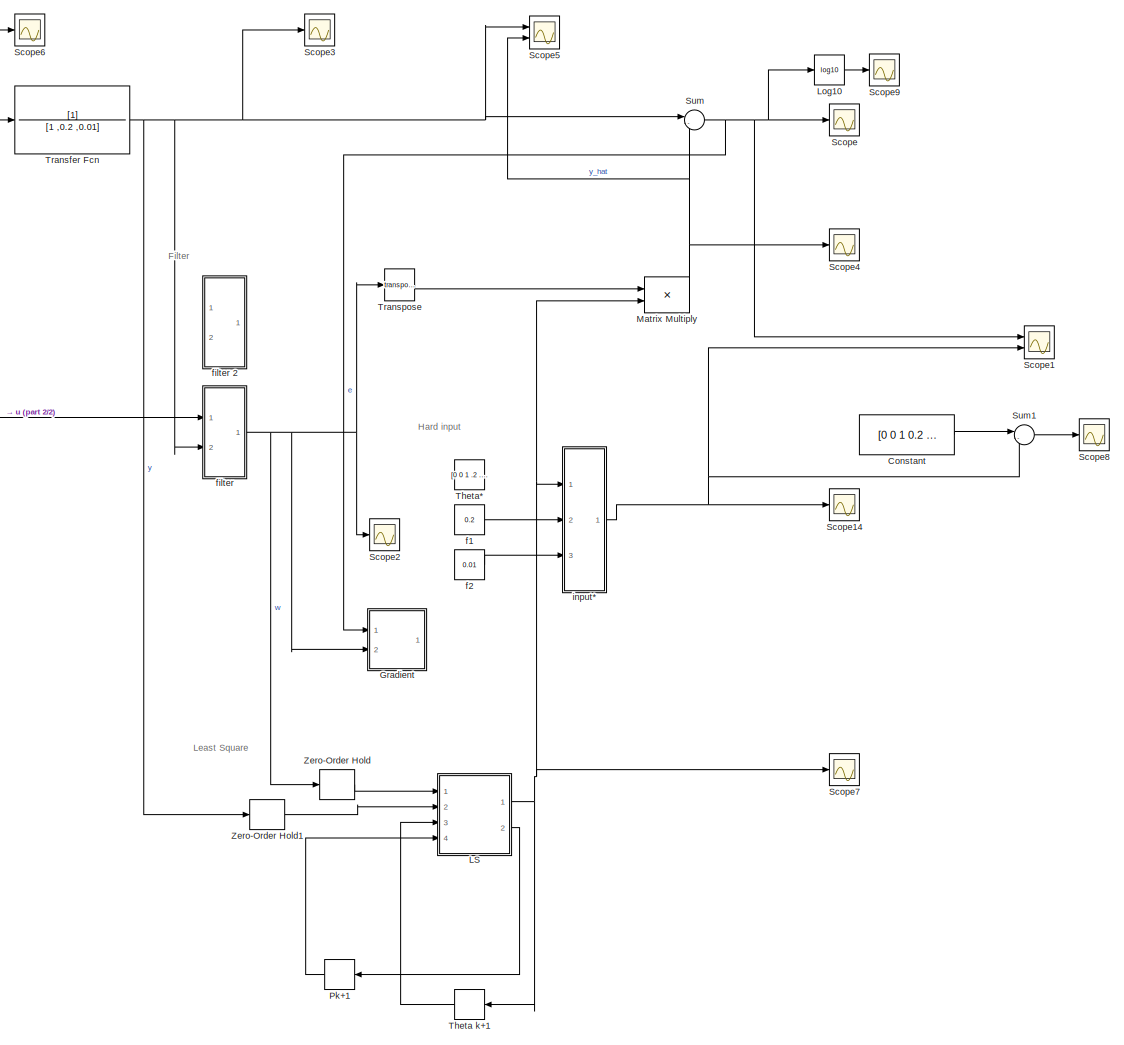
[diagram: root canvas - part 1/2, most of the canvas]
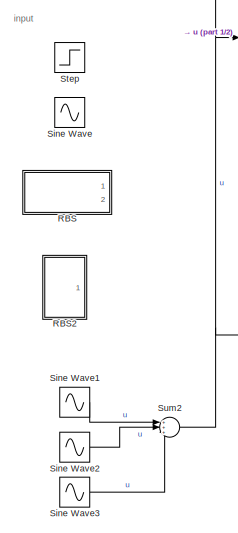
[diagram: root canvas - part 2/2, middle left region]
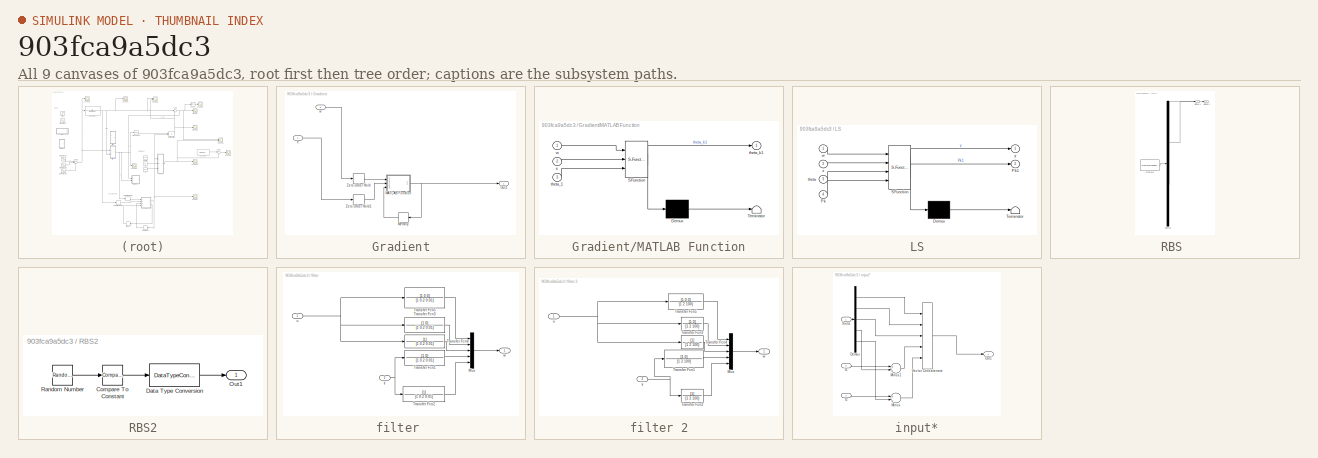
[diagram: thumbnail index - all 9 canvases of the model, root first then tree order]
MODEL slx_903fca9a5dc3
KIND model
CONFIG AbsTol = auto
CONFIG EnableMultiTasking = off
CONFIG FixedStep = auto
CONFIG MaxStep = auto
CONFIG MinStep = auto
CONFIG RelTol = 1e-3
CONFIG SampleTimeConstraint = Unconstrained
CONFIG Solver = VariableStepAuto
CONFIG SolverName = VariableStepAuto
CONFIG StartTime = 0.0
CONFIG StopTime = 50
BLOCK [Constant] Constant
  Value = [0 0 1 0.2 0.01]'
BLOCK [SubSystem] Gradient
  Ports = [2, 1]
  RequestExecContextInheritance = off
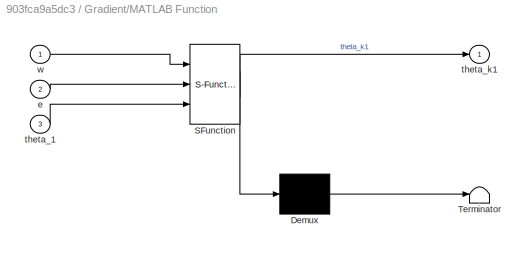
BLOCK [SubSystem] Gradient/MATLAB Function
  ErrorFcn = Stateflow.Translate.translate
  PermitHierarchicalResolution = ExplicitOnly
  Ports = [3, 1]
  RequestExecContextInheritance = off
  SFBlockType = MATLAB Function
  TreatAsAtomicUnit = on
BLOCK [Demux] Gradient/MATLAB Function/ Demux 
  Outputs = 1
  Ports = [1, 1]
BLOCK [S-Function] Gradient/MATLAB Function/ SFunction 
  EnableBusSupport = on
  FunctionName = sf_sfun
  PortCounts = [3 2]
  Ports = [3, 2]
  SFcnIsStateOwnerBlock = off
  SFunctionDeploymentMode = off
  Tag = Stateflow S-Function 2
BLOCK [Terminator] Gradient/MATLAB Function/ Terminator 
BLOCK [Inport] Gradient/MATLAB Function/e
  IconDisplay = Port number
  Port = 2
BLOCK [Inport] Gradient/MATLAB Function/theta_1
  IconDisplay = Port number
  Port = 3
BLOCK [Outport] Gradient/MATLAB Function/theta_k1
  IconDisplay = Port number
BLOCK [Inport] Gradient/MATLAB Function/w
  IconDisplay = Port number
BLOCK [Memory] Gradient/Memory
  InitialCondition = [0 0 0.9 0.000001 0.0000001]'
BLOCK [Outport] Gradient/Out1
  IconDisplay = Port number
BLOCK [ZeroOrderHold] Gradient/Zero-Order Hold
  SampleTime = 0.01
BLOCK [ZeroOrderHold] Gradient/Zero-Order Hold1
  SampleTime = 0.01
BLOCK [Inport] Gradient/e
  IconDisplay = Port number
BLOCK [Inport] Gradient/w
  IconDisplay = Port number
  Port = 2
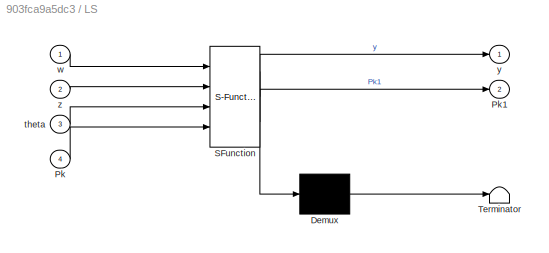
BLOCK [SubSystem] LS
  ErrorFcn = Stateflow.Translate.translate
  PermitHierarchicalResolution = ExplicitOnly
  Ports = [4, 2]
  RequestExecContextInheritance = off
  SFBlockType = MATLAB Function
  TreatAsAtomicUnit = on
BLOCK [Demux] LS/ Demux 
  Outputs = 1
  Ports = [1, 1]
BLOCK [S-Function] LS/ SFunction 
  EnableBusSupport = on
  FunctionName = sf_sfun
  PortCounts = [4 3]
  Ports = [4, 3]
  SFcnIsStateOwnerBlock = off
  SFunctionDeploymentMode = off
  Tag = Stateflow S-Function 3
BLOCK [Terminator] LS/ Terminator 
BLOCK [Inport] LS/Pk
  IconDisplay = Port number
  Port = 4
BLOCK [Outport] LS/Pk1
  IconDisplay = Port number
  Port = 2
BLOCK [Inport] LS/theta
  IconDisplay = Port number
  Port = 3
BLOCK [Inport] LS/w
  IconDisplay = Port number
BLOCK [Outport] LS/y
  IconDisplay = Port number
BLOCK [Inport] LS/z
  IconDisplay = Port number
  Port = 2
BLOCK [Math] Log10
  Operator = log10
  Ports = [1, 1]
  SignedPower = off
BLOCK [Product] Matrix Multiply
  InputSameDT = off
  Multiplication = Matrix(*)
  OutDataTypeStr = Inherit: Inherit via internal rule
  Ports = [2, 1]
  RndMeth = Floor
  SaturateOnIntegerOverflow = off
BLOCK [Memory] Pk+1
  InitialCondition = (10^5)*eye(5)
BLOCK [SubSystem] RBS 
  ClipboardFcn = sigbuilder_block('clipboard');
  CloseFcn = sigbuilder_block('close');
  ContinueFcn = sigbuilder_block('continue');
  CopyFcn = sigbuilder_block('copy');
  DeleteFcn = sigbuilder_block('delete');
  LoadFcn = sigbuilder_block('load');
  MaskHideContents = on
  ModelCloseFcn = sigbuilder_block('modelClose');
  NameChangeFcn = sigbuilder_block('namechange');
  OpenFcn = sigbuilder_block('open',[215 62.5 550.5 362.5 ]);
  PauseFcn = sigbuilder_block('pause');
  Ports = [0, 2]
  PreSaveFcn = sigbuilder_block('preSave');
  RequestExecContextInheritance = off
  StartFcn = sigbuilder_block('start');
  StopFcn = sigbuilder_block('stop');
  Tag = STV Subsys
BLOCK [Demux] RBS /Demux
  Outputs = 2
  Ports = [1, 2]
  Tag = STV Demux
BLOCK [FromWorkspace] RBS /FromWs
  SampleTime = 0
  Tag = STV FromWs
  VariableName = tuvar
  ZeroCross = on
BLOCK [Outport] RBS /Signal 1
  IconDisplay = Port number
  Tag = STV Outport
BLOCK [Outport] RBS /Signal 2
  IconDisplay = Port number
  Port = 2
  Tag = STV Outport
BLOCK [SubSystem] RBS2
  Ports = [0, 1]
  RequestExecContextInheritance = off
BLOCK [Reference] RBS2/Compare To Constant  REF=simulink/Logic and Bit
Operations/Compare
To Constant
  Ports = [1, 1]
  SourceBlock = simulink/Logic and Bit\nOperations/Compare\nTo Constant
  SourceProductBaseCode = SL
  SourceProductName = Simulink
  SourceType = Compare To Constant
BLOCK [DataTypeConversion] RBS2/Data Type Conversion
  OutDataTypeStr = double
  RndMeth = Floor
  SaturateOnIntegerOverflow = off
BLOCK [Outport] RBS2/Out1
  IconDisplay = Port number
BLOCK [RandomNumber] RBS2/Random Number
  Mean = 1
  SampleTime = 10
BLOCK [Scope] Scope
  Floating = off
  NumInputPorts = 1
  Ports = [1]
  ScopeSpecificationString = Simulink.scopes.TimeScopeBlockCfg('CurrentConfiguration', extmgr.ConfigurationSet(extmgr.Configuration('Core','General UI',true),extmgr.Configuration('Core','Source UI',true),extmgr.Configuration('Sources','WiredSimulink',true),extmgr.Configuration('Visuals','Time Domain',true,'SerializedDisplays',{struct('MinYLimReal','-0.00069','MaxYLimReal','0.00022','YLabelReal','','MinYLimMag','0.00000','MaxY...<+1402ch>
BLOCK [Scope] Scope1
  Floating = off
  NumInputPorts = 2
  Ports = [2]
  ScopeSpecificationString = Simulink.scopes.TimeScopeBlockCfg('CurrentConfiguration', extmgr.ConfigurationSet(extmgr.Configuration('Core','General UI',true),extmgr.Configuration('Core','Source UI',true),extmgr.Configuration('Sources','WiredSimulink',true,'DataLoggingVariableName','ScopeData1'),extmgr.Configuration('Visuals','Time Domain',true,'SerializedDisplays',{struct('MinYLimReal','-14.18813','MaxYLimReal','2.90358','YLa...<+1784ch>
BLOCK [Scope] Scope14
  Floating = off
  NumInputPorts = 1
  Ports = [1]
  ScopeSpecificationString = Simulink.scopes.TimeScopeBlockCfg('CurrentConfiguration', extmgr.ConfigurationSet(extmgr.Configuration('Core','General UI',true),extmgr.Configuration('Core','Source UI',true),extmgr.Configuration('Sources','WiredSimulink',true,'DataLoggingVariableName','ScopeData14'),extmgr.Configuration('Visuals','Time Domain',true,'SerializedDisplays',{struct('MinYLimReal','-0.11303','MaxYLimReal','1.01684','YLa...<+1748ch>
BLOCK [Scope] Scope2
  Floating = off
  NumInputPorts = 1
  Ports = [1]
  ScopeSpecificationString = Simulink.scopes.TimeScopeBlockCfg('CurrentConfiguration', extmgr.ConfigurationSet(extmgr.Configuration('Core','General UI',true),extmgr.Configuration('Core','Source UI',true),extmgr.Configuration('Sources','WiredSimulink',true,'DataLoggingVariableName','ScopeData2'),extmgr.Configuration('Visuals','Time Domain',true,'SerializedDisplays',{struct('MinYLimReal','-655.44681','MaxYLimReal','5892.70335',...<+1447ch>
BLOCK [Scope] Scope3
  Floating = off
  NumInputPorts = 1
  Ports = [1]
  ScopeSpecificationString = Simulink.scopes.TimeScopeBlockCfg('CurrentConfiguration', extmgr.ConfigurationSet(extmgr.Configuration('Core','General UI',true),extmgr.Configuration('Core','Source UI',true),extmgr.Configuration('Sources','WiredSimulink',true,'DataLoggingVariableName','ScopeData3'),extmgr.Configuration('Visuals','Time Domain',true,'SerializedDisplays',{struct('MinYLimReal','-1.69213','MaxYLimReal','5.39689','YLab...<+1475ch>
BLOCK [Scope] Scope4
  Floating = off
  NumInputPorts = 1
  Ports = [1]
  ScopeSpecificationString = Simulink.scopes.TimeScopeBlockCfg('CurrentConfiguration', extmgr.ConfigurationSet(extmgr.Configuration('Core','General UI',true),extmgr.Configuration('Core','Source UI',true),extmgr.Configuration('Sources','WiredSimulink',true,'DataLoggingVariableName','ScopeData4'),extmgr.Configuration('Visuals','Time Domain',true,'SerializedDisplays',{struct('MinYLimReal','-20692109403892802471967819198022845405...<+3850ch>
BLOCK [Scope] Scope5
  Floating = off
  NumInputPorts = 2
  Ports = [2]
  ScopeSpecificationString = Simulink.scopes.TimeScopeBlockCfg('CurrentConfiguration', extmgr.ConfigurationSet(extmgr.Configuration('Core','General UI',true),extmgr.Configuration('Core','Source UI',true),extmgr.Configuration('Sources','WiredSimulink',true,'DataLoggingVariableName','ScopeData5'),extmgr.Configuration('Visuals','Time Domain',true,'SerializedDisplays',{struct('MinYLimReal','-8.57343','MaxYLimReal','67.68803','YLa...<+1471ch>
BLOCK [Scope] Scope6
  Floating = off
  NumInputPorts = 1
  Ports = [1]
  ScopeSpecificationString = Simulink.scopes.TimeScopeBlockCfg('CurrentConfiguration', extmgr.ConfigurationSet(extmgr.Configuration('Core','General UI',true),extmgr.Configuration('Core','Source UI',true),extmgr.Configuration('Sources','WiredSimulink',true,'DataLoggingVariableName','ScopeData6'),extmgr.Configuration('Visuals','Time Domain',true,'SerializedDisplays',{struct('MinYLimReal','-3.39657','MaxYLimReal','3.43621','YLab...<+1470ch>
BLOCK [Scope] Scope7
  Floating = off
  NumInputPorts = 1
  Ports = [1]
  ScopeSpecificationString = Simulink.scopes.TimeScopeBlockCfg('CurrentConfiguration', extmgr.ConfigurationSet(extmgr.Configuration('Core','General UI',true),extmgr.Configuration('Core','Source UI',true),extmgr.Configuration('Sources','WiredSimulink',true,'DataLoggingVariableName','ScopeData7'),extmgr.Configuration('Visuals','Time Domain',true,'SerializedDisplays',{struct('MinYLimReal','-0.18477','MaxYLimReal','1.13164','YLab...<+1632ch>
BLOCK [Scope] Scope8
  Floating = off
  NumInputPorts = 1
  Ports = [1]
  ScopeSpecificationString = Simulink.scopes.TimeScopeBlockCfg('CurrentConfiguration', extmgr.ConfigurationSet(extmgr.Configuration('Core','General UI',true),extmgr.Configuration('Core','Source UI',true),extmgr.Configuration('Sources','WiredSimulink',true,'DataLoggingVariableName','ScopeData8'),extmgr.Configuration('Visuals','Time Domain',true,'SerializedDisplays',{struct('MinYLimReal','-1.15517','MaxYLimReal','0.39657','YLab...<+1736ch>
BLOCK [Scope] Scope9
  Floating = off
  NumInputPorts = 1
  Ports = [1]
  ScopeSpecificationString = Simulink.scopes.TimeScopeBlockCfg('CurrentConfiguration', extmgr.ConfigurationSet(extmgr.Configuration('Core','General UI',true),extmgr.Configuration('Core','Source UI',true),extmgr.Configuration('Sources','WiredSimulink',true,'DataLoggingVariableName','ScopeData1'),extmgr.Configuration('Visuals','Time Domain',true,'SerializedDisplays',{struct('MinYLimReal','-11.85317','MaxYLimReal','-3.00149','YL...<+1451ch>
BLOCK [Sin] Sine Wave
  Frequency = 0.1
  Ports = [0, 1]
  SampleTime = 0
BLOCK [Sin] Sine Wave1
  Frequency = 0.1
  Phase = 0.1
  Ports = [0, 1]
  SampleTime = 0
BLOCK [Sin] Sine Wave2
  Ports = [0, 1]
  SampleTime = 0
BLOCK [Sin] Sine Wave3
  Frequency = 2
  Ports = [0, 1]
  SampleTime = 0
BLOCK [Step] Step
  SampleTime = 0
BLOCK [Sum] Sum
  IconShape = round
  InputSameDT = off
  Inputs = |-+
  OutDataTypeStr = Inherit: Inherit via internal rule
  Ports = [2, 1]
  SaturateOnIntegerOverflow = off
BLOCK [Sum] Sum1
  IconShape = round
  InputSameDT = off
  Inputs = |-+
  OutDataTypeStr = Inherit: Inherit via internal rule
  Ports = [2, 1]
  SaturateOnIntegerOverflow = off
BLOCK [Sum] Sum2
  IconShape = round
  InputSameDT = off
  Inputs = +++
  OutDataTypeStr = Inherit: Inherit via internal rule
  Ports = [3, 1]
  SaturateOnIntegerOverflow = off
BLOCK [Memory] Theta k+1
  InitialCondition = [0 0 0 0 0]'
BLOCK [Constant] Theta*
  Value = [0 0 1 .2 .01]'
BLOCK [TransferFcn] Transfer Fcn
  Denominator = [1 ,0.2 ,0.01]
BLOCK [Math] Transpose
  Operator = transpose
  Ports = [1, 1]
  SignedPower = off
BLOCK [ZeroOrderHold] Zero-Order Hold
  SampleTime = -1
BLOCK [ZeroOrderHold] Zero-Order Hold1
  SampleTime = -1
BLOCK [Constant] f1
  Value = 0.2
BLOCK [Constant] f2
  Value = 0.01
BLOCK [SubSystem] filter 
  Ports = [2, 1]
  RequestExecContextInheritance = off
BLOCK [Mux] filter /Mux
  DisplayOption = bar
  Inputs = 5
  Ports = [5, 1]
BLOCK [TransferFcn] filter /Transfer Fcn1
  Denominator = [1 0.2 0.01]
  Numerator = [1 0]
BLOCK [TransferFcn] filter /Transfer Fcn2
  Denominator = [1 0.2 0.01]
BLOCK [TransferFcn] filter /Transfer Fcn3
  Denominator = [1 0.2 0.01]
  Numerator = [1 0]
BLOCK [TransferFcn] filter /Transfer Fcn4
  Denominator = [1 0.2 0.01]
BLOCK [TransferFcn] filter /Transfer Fcn5
  Denominator = [1 0.2 0.01]
  Numerator = [1 0 0]
BLOCK [Inport] filter /u 
  IconDisplay = Port number
BLOCK [Outport] filter /w
  IconDisplay = Port number
BLOCK [Inport] filter /y 
  IconDisplay = Port number
  Port = 2
BLOCK [SubSystem] filter 2
  Ports = [2, 1]
  RequestExecContextInheritance = off
BLOCK [Mux] filter 2/Mux
  DisplayOption = bar
  Inputs = 5
  Ports = [5, 1]
BLOCK [TransferFcn] filter 2/Transfer Fcn1
  Denominator = [1 2 100]
  Numerator = [1 0]
BLOCK [TransferFcn] filter 2/Transfer Fcn2
  Denominator = [1 2 100]
BLOCK [TransferFcn] filter 2/Transfer Fcn3
  Denominator = [1 2 100]
  Numerator = [1 0]
BLOCK [TransferFcn] filter 2/Transfer Fcn4
  Denominator = [1 2 100]
BLOCK [TransferFcn] filter 2/Transfer Fcn5
  Denominator = [1 2 100]
  Numerator = [1 0 0]
BLOCK [Inport] filter 2/u 
  IconDisplay = Port number
BLOCK [Outport] filter 2/w
  IconDisplay = Port number
BLOCK [Inport] filter 2/y 
  IconDisplay = Port number
  Port = 2
BLOCK [SubSystem] input*
  Ports = [3, 1]
  RequestExecContextInheritance = off
BLOCK [Demux] input*/Demux
  DisplayOption = bar
  Outputs = 5
  Ports = [1, 5]
BLOCK [Sum] input*/Minus
  InputSameDT = off
  Inputs = +-
  OutDataTypeStr = Inherit: Inherit via internal rule
  Ports = [2, 1]
  SaturateOnIntegerOverflow = off
BLOCK [Sum] input*/Minus1
  InputSameDT = off
  Inputs = +-
  OutDataTypeStr = Inherit: Inherit via internal rule
  Ports = [2, 1]
  SaturateOnIntegerOverflow = off
BLOCK [Outport] input*/Out1
  IconDisplay = Port number
BLOCK [Concatenate] input*/Vector Concatenate
  NumInputs = 5
  Ports = [5, 1]
BLOCK [Inport] input*/f1
  IconDisplay = Port number
  Port = 2
BLOCK [Inport] input*/f2
  IconDisplay = Port number
  Port = 3
BLOCK [Inport] input*/theta
  IconDisplay = Port number
ANNOTATION (root): Filter
ANNOTATION (root): Hard input
ANNOTATION (root): Least Square
ANNOTATION (root): input
LINE Constant:1 -> Sum1:1
NET Gradient/MATLAB Function:1 -> Gradient/Memory:1, Gradient/Out1:1
LINE Gradient/Memory:1 -> Gradient/MATLAB Function:3
LINE Gradient/Zero-Order Hold1:1 -> Gradient/MATLAB Function:2
LINE Gradient/Zero-Order Hold:1 -> Gradient/MATLAB Function:1
LINE Gradient/e:1 -> Gradient/Zero-Order Hold1:1
LINE Gradient/w:1 -> Gradient/Zero-Order Hold:1
NET LS:1 -> Matrix Multiply:2, Scope7:1, Theta k+1:1, input*:1
LINE LS:2 -> Pk+1:1
LINE Log10:1 -> Scope9:1
NET Matrix Multiply:1 -> Scope4:1, Scope5:2, Sum:2
LINE Pk+1:1 -> LS:4
LINE RBS2/Compare To Constant:1 -> RBS2/Data Type Conversion:1
LINE RBS2/Data Type Conversion:1 -> RBS2/Out1:1
LINE RBS2/Random Number:1 -> RBS2/Compare To Constant:1
LINE Sine Wave1:1 -> Sum2:1
LINE Sine Wave2:1 -> Sum2:2
LINE Sine Wave3:1 -> Sum2:3
LINE Sum1:1 -> Scope8:1
NET Sum2:1 -> Scope6:1, Transfer Fcn:1, filter :1
NET Sum:1 -> Gradient:1, Log10:1, Scope1:1, Scope:1
LINE Theta k+1:1 -> LS:3
NET Transfer Fcn:1 -> Scope3:1, Scope5:1, Sum:1, Zero-Order Hold1:1, filter :2
LINE Transpose:1 -> Matrix Multiply:1
LINE Zero-Order Hold1:1 -> LS:2
LINE Zero-Order Hold:1 -> LS:1
LINE f1:1 -> input*:2
LINE f2:1 -> input*:3
LINE filter /Mux:1 -> filter /w:1
LINE filter /Transfer Fcn1:1 -> filter /Mux:4
LINE filter /Transfer Fcn2:1 -> filter /Mux:5
LINE filter /Transfer Fcn3:1 -> filter /Mux:2
LINE filter /Transfer Fcn4:1 -> filter /Mux:3
LINE filter /Transfer Fcn5:1 -> filter /Mux:1
NET filter /u :1 -> filter /Transfer Fcn3:1, filter /Transfer Fcn4:1, filter /Transfer Fcn5:1
NET filter /y :1 -> filter /Transfer Fcn1:1, filter /Transfer Fcn2:1
LINE filter 2/Mux:1 -> filter 2/w:1
LINE filter 2/Transfer Fcn1:1 -> filter 2/Mux:4
LINE filter 2/Transfer Fcn2:1 -> filter 2/Mux:5
LINE filter 2/Transfer Fcn3:1 -> filter 2/Mux:2
LINE filter 2/Transfer Fcn4:1 -> filter 2/Mux:3
LINE filter 2/Transfer Fcn5:1 -> filter 2/Mux:1
NET filter 2/u :1 -> filter 2/Transfer Fcn3:1, filter 2/Transfer Fcn4:1, filter 2/Transfer Fcn5:1
NET filter 2/y :1 -> filter 2/Transfer Fcn1:1, filter 2/Transfer Fcn2:1
NET filter :1 -> Gradient:2, Scope2:1, Transpose:1, Zero-Order Hold:1
LINE input*/Demux:1 -> input*/Vector Concatenate:1
LINE input*/Demux:2 -> input*/Vector Concatenate:2
LINE input*/Demux:3 -> input*/Vector Concatenate:3
LINE input*/Demux:4 -> input*/Minus1:2
LINE input*/Demux:5 -> input*/Minus:2
LINE input*/Minus1:1 -> input*/Vector Concatenate:4
LINE input*/Minus:1 -> input*/Vector Concatenate:5
LINE input*/Vector Concatenate:1 -> input*/Out1:1
LINE input*/f1:1 -> input*/Minus1:1
LINE input*/f2:1 -> input*/Minus:1
LINE input*/theta:1 -> input*/Demux:1
NET input*:1 -> Scope14:1, Scope1:2, Sum1:2
note: NET lines group one-source signal fan-out (src -> all destinations, sorted); 1:1 wires keep LINE
CHART Gradient/MATLAB Function states=1 transitions=1
  STATE_LABEL 'eML_blk_kernel()'
  STATE_LABEL 'SCRIPT:\nfunction theta_k1 = fcn(w, e, theta_1)\ngamma = 0.000001;\ndt = 0.01;\n%I = eye(5);\n%gamma = alpha*I;\ntheta_dot = -gamma*w*e;\ntheta_k1 = theta_1 + theta_dot*dt;\n'
CHART LS states=1 transitions=1
  STATE_LABEL 'eML_blk_kernel()'
  STATE_LABEL "SCRIPT:\nfunction [ y,Pk1] = fcn(w, z, theta, Pk)\nalpha = 1; %standard\ngamma = 1/alpha;\n%e = 10^-4;\n%Q = e*eye(5);\n%Pk = eye(5);\n\n%initial values\n%ro = 10^5;\n%P1 = ro*eye(5);\n%theta1 = [0 0 1 0.2 0.01]';\n%Calculations\n\ntheta_k1 = theta - (gamma*Pk*w*(w'*theta-z))/ (1+gamma*w'*Pk*w);\ny = theta_k1;\nPk1 = (1/alpha)*Pk - ((gamma^2*Pk*w*w'*Pk)/(1+gamma*w'*Pk*w));\n"
